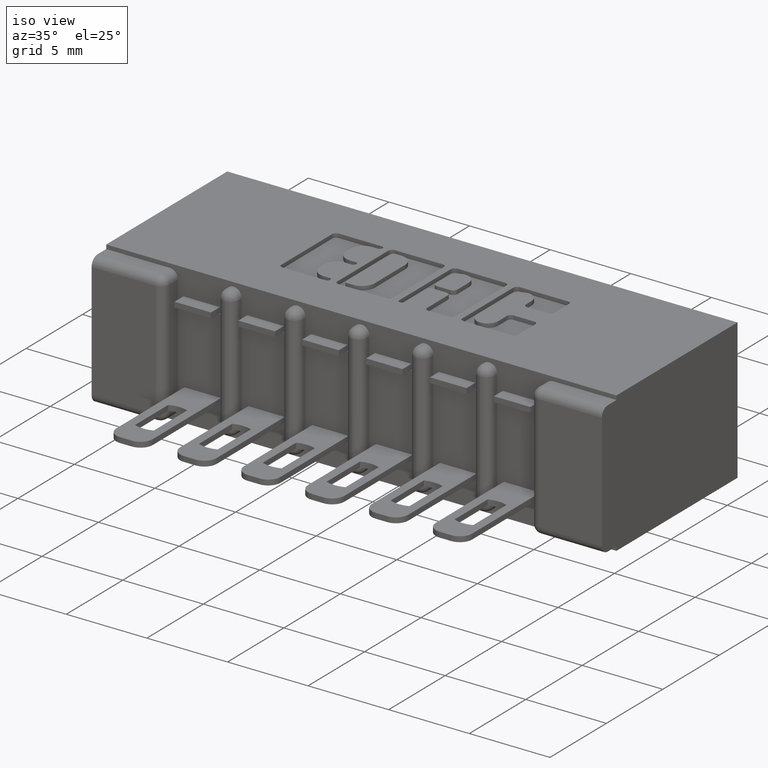
[diagram: clean part render]
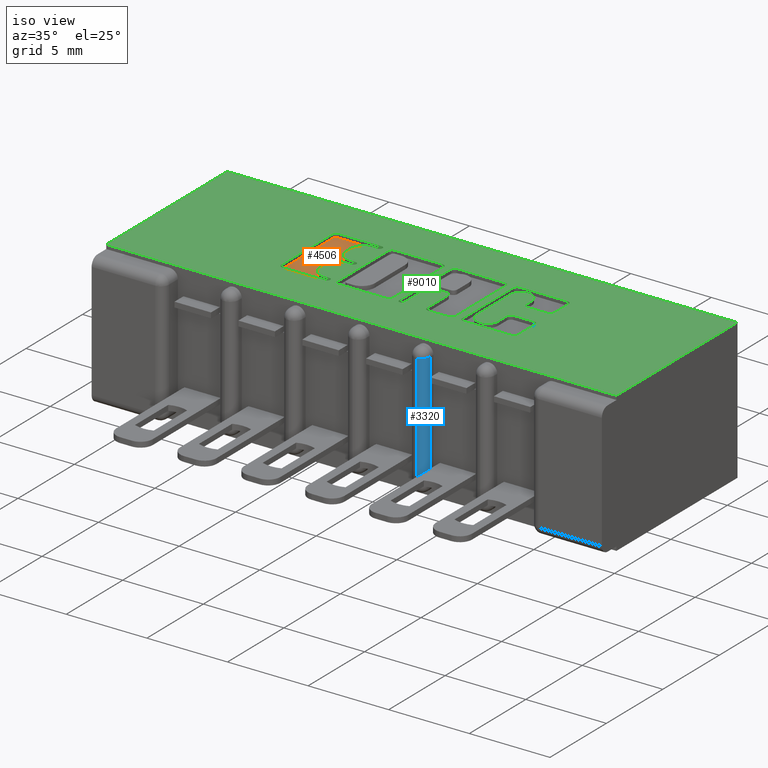
[diagram: same view with three faces highlighted in distinct colors, each labeled with its STEP entity id]
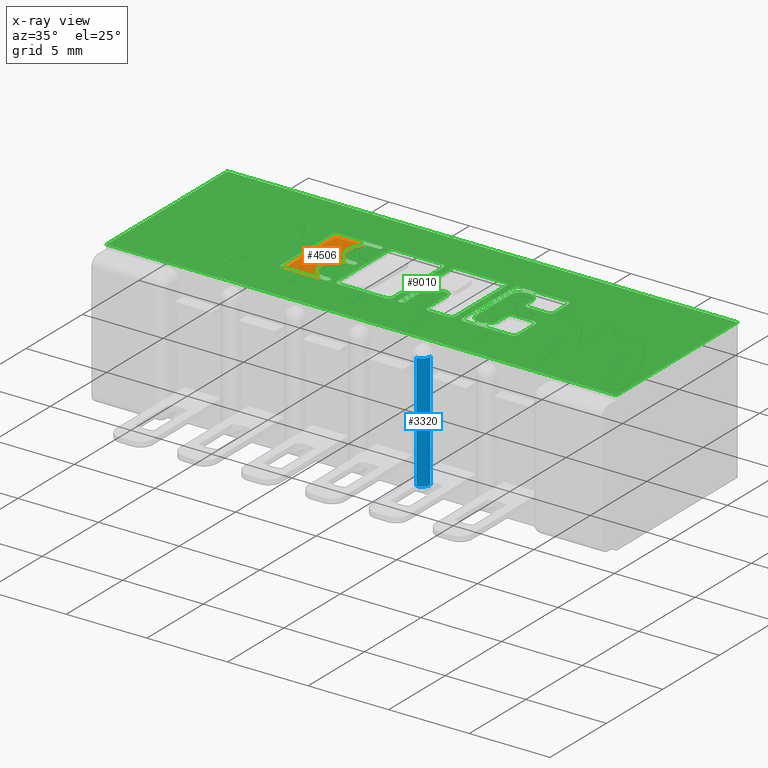
[diagram: x-ray of the same camera — body ghosted, the three highlighted faces saturated]
A machine part, iso view with three faces highlighted in distinct colors.
The next image is the same camera in x-ray (body ghosted, the three faces saturated) — at least one of them is partly hidden behind the body in this view.
Their STEP definitions:

[orange] entity #4506 — the highlighted planar face has unit normal (0, 0, 1).
#82 = CARTESIAN_POINT ( 'NONE',  ( 0.7406370600051098700, 0.1775852362473085400, -0.01000000000000000000 ) ) ;
#140 = VECTOR ( 'NONE', #4859, 39.37007874015748100 ) ;
#141 = AXIS2_PLACEMENT_3D ( 'NONE', #1447, #8492, #6888 ) ;
#143 = CIRCLE ( 'NONE', #8377, 0.03141014465217454400 ) ;
#158 = DIRECTION ( 'NONE',  ( -0.0000000000000000000, 0.0000000000000000000, 1.000000000000000000 ) ) ;
#172 = CARTESIAN_POINT ( 'NONE',  ( 0.7092269153529280300, 0.2089953808994903200, -0.01000000000000000000 ) ) ;
#202 = DIRECTION ( 'NONE',  ( 1.000000000000000000, 0.0000000000000000000, 0.0000000000000000000 ) ) ;
#273 = LINE ( 'NONE', #2549, #8313 ) ;
#316 = EDGE_CURVE ( 'NONE', #9116, #7431, #3802, .T. ) ;
#317 = CIRCLE ( 'NONE', #141, 0.009815670203805798900 ) ;
#346 = EDGE_CURVE ( 'NONE', #6788, #4488, #273, .T. ) ;
#397 = AXIS2_PLACEMENT_3D ( 'NONE', #1315, #2874, #635 ) ;
#433 = VECTOR ( 'NONE', #4834, 39.37007874015748100 ) ;
#489 = EDGE_CURVE ( 'NONE', #1811, #9910, #4289, .T. ) ;
#562 = DIRECTION ( 'NONE',  ( -1.000000000000000000, -1.189163988687022500E-013, 0.0000000000000000000 ) ) ;
#575 = AXIS2_PLACEMENT_3D ( 'NONE', #7762, #6222, #3230 ) ;
#635 = DIRECTION ( 'NONE',  ( 1.000000000000000000, 0.0000000000000000000, 0.0000000000000000000 ) ) ;
#642 = EDGE_CURVE ( 'NONE', #5603, #7182, #4526, .T. ) ;
#685 = LINE ( 'NONE', #6472, #433 ) ;
#708 = AXIS2_PLACEMENT_3D ( 'NONE', #6861, #7624, #3822 ) ;
#710 = VERTEX_POINT ( 'NONE', #1700 ) ;
#858 = VERTEX_POINT ( 'NONE', #7352 ) ;
#899 = VECTOR ( 'NONE', #6488, 39.37007874015748100 ) ;
#956 = CARTESIAN_POINT ( 'NONE',  ( 0.7092269153529097100, 0.0000000000000000000, -0.01000000000000000000 ) ) ;
#967 = CARTESIAN_POINT ( 'NONE',  ( 0.7541336065353515500, 0.3532857328953861700, -0.01000000000000000000 ) ) ;
#985 = ORIENTED_EDGE ( 'NONE', *, *, #3922, .T. ) ;
#1099 = CARTESIAN_POINT ( 'NONE',  ( 0.7092269153529097100, 0.3002811137948582800, -0.01000000000000000000 ) ) ;
#1112 = DIRECTION ( 'NONE',  ( -0.0000000000000000000, 0.0000000000000000000, 1.000000000000000000 ) ) ;
#1173 = CIRCLE ( 'NONE', #2620, 0.006870969142663458500 ) ;
#1206 = VECTOR ( 'NONE', #2721, 39.37007874015748100 ) ;
#1258 = AXIS2_PLACEMENT_3D ( 'NONE', #8957, #1112, #6634 ) ;
#1315 = CARTESIAN_POINT ( 'NONE',  ( 0.7406370600051098700, 0.2089953808994903200, -0.01000000000000000000 ) ) ;
#1447 = CARTESIAN_POINT ( 'NONE',  ( 0.6498421106199224800, 0.1736589681657899100, -0.01000000000000000000 ) ) ;
#1451 = CARTESIAN_POINT ( 'NONE',  ( 0.0000000000000000000, 0.2551290308573567800, -0.01000000000000000000 ) ) ;
#1603 = AXIS2_PLACEMENT_3D ( 'NONE', #967, #4891, #202 ) ;
#1700 = CARTESIAN_POINT ( 'NONE',  ( 0.7610045756779737500, 0.2620000000000202700, -0.01000000000000000000 ) ) ;
#1769 = LINE ( 'NONE', #8553, #8476 ) ;
#1788 = CARTESIAN_POINT ( 'NONE',  ( 0.6400264404161156700, 0.0000000000000000000, -0.01000000000000000000 ) ) ;
#1811 = VERTEX_POINT ( 'NONE', #7774 ) ;
#1977 = DIRECTION ( 'NONE',  ( -0.0000000000000000000, 0.0000000000000000000, 1.000000000000000000 ) ) ;
#1997 = LINE ( 'NONE', #3619, #8569 ) ;
#2039 = CIRCLE ( 'NONE', #2547, 0.009815670203822599700 ) ;
#2084 = CARTESIAN_POINT ( 'NONE',  ( 0.7406370600050843400, 0.3002811137948582800, -0.01000000000000000000 ) ) ;
#2085 = DIRECTION ( 'NONE',  ( -0.0000000000000000000, 0.0000000000000000000, 1.000000000000000000 ) ) ;
#2101 = CARTESIAN_POINT ( 'NONE',  ( 0.7541336064154146000, 0.1638432979619856000, -0.01000000000000000000 ) ) ;
#2131 = CARTESIAN_POINT ( 'NONE',  ( 0.7092269153529097100, 0.3150046191005197400, -0.01000000000000000000 ) ) ;
#2171 = ORIENTED_EDGE ( 'NONE', *, *, #7092, .T. ) ;
#2178 = CARTESIAN_POINT ( 'NONE',  ( 0.7541336065353515500, 0.3601567020380326800, -0.01000000000000000000 ) ) ;
#2195 = ORIENTED_EDGE ( 'NONE', *, *, #3549, .T. ) ;
#2547 = AXIS2_PLACEMENT_3D ( 'NONE', #5133, #2651, #9760 ) ;
#2549 = CARTESIAN_POINT ( 'NONE',  ( 0.7092269153529280300, 0.0000000000000000000, -0.01000000000000000000 ) ) ;
#2594 = AXIS2_PLACEMENT_3D ( 'NONE', #9159, #2085, #9929 ) ;
#2620 = AXIS2_PLACEMENT_3D ( 'NONE', #7592, #4542, #9120 ) ;
#2651 = DIRECTION ( 'NONE',  ( -0.0000000000000000000, 0.0000000000000000000, 1.000000000000000000 ) ) ;
#2721 = DIRECTION ( 'NONE',  ( -1.000000000000000000, 0.0000000000000000000, 0.0000000000000000000 ) ) ;
#2737 = VERTEX_POINT ( 'NONE', #7595 ) ;
#2758 = ORIENTED_EDGE ( 'NONE', *, *, #2830, .T. ) ;
#2830 = EDGE_CURVE ( 'NONE', #10110, #5603, #4478, .T. ) ;
#2874 = DIRECTION ( 'NONE',  ( -0.0000000000000000000, 0.0000000000000000000, 1.000000000000000000 ) ) ;
#2923 = EDGE_CURVE ( 'NONE', #858, #4488, #7775, .T. ) ;
#2961 = DIRECTION ( 'NONE',  ( 1.000000000000000000, 0.0000000000000000000, 0.0000000000000000000 ) ) ;
#3051 = ORIENTED_EDGE ( 'NONE', *, *, #7728, .T. ) ;
#3126 = LINE ( 'NONE', #8395, #3960 ) ;
#3230 = DIRECTION ( 'NONE',  ( 1.000000000000000000, 0.0000000000000000000, 0.0000000000000000000 ) ) ;
#3284 = DIRECTION ( 'NONE',  ( 1.000000000000000000, 0.0000000000000000000, 0.0000000000000000000 ) ) ;
#3354 = CARTESIAN_POINT ( 'NONE',  ( 0.7541336065353102500, 0.2688709691426837700, -0.01000000000000000000 ) ) ;
#3369 = CARTESIAN_POINT ( 'NONE',  ( 0.7092269153529280300, 0.2237188862052004700, -0.01000000000000000000 ) ) ;
#3404 = DIRECTION ( 'NONE',  ( -0.0000000000000000000, 0.0000000000000000000, 1.000000000000000000 ) ) ;
#3466 = CIRCLE ( 'NONE', #397, 0.03141014465218178200 ) ;
#3469 = CIRCLE ( 'NONE', #1258, 0.006870969142662229500 ) ;
#3549 = EDGE_CURVE ( 'NONE', #5065, #6986, #8612, .T. ) ;
#3619 = CARTESIAN_POINT ( 'NONE',  ( -2.111779678676719100E-014, 0.1775852362472204700, -0.01000000000000000000 ) ) ;
#3628 = CARTESIAN_POINT ( 'NONE',  ( 0.0000000000000000000, 0.2688709691426837700, -0.01000000000000000000 ) ) ;
#3716 = FACE_OUTER_BOUND ( 'NONE', #4355, .T. ) ;
#3802 = LINE ( 'NONE', #1788, #899 ) ;
#3811 = CARTESIAN_POINT ( 'NONE',  ( 0.7541336065353516600, 0.3464147637527356100, -0.01000000000000000000 ) ) ;
#3822 = DIRECTION ( 'NONE',  ( 1.000000000000000000, 0.0000000000000000000, 0.0000000000000000000 ) ) ;
#3899 = VERTEX_POINT ( 'NONE', #82 ) ;
#3922 = EDGE_CURVE ( 'NONE', #5560, #710, #5196, .T. ) ;
#3960 = VECTOR ( 'NONE', #9051, 39.37007874015748100 ) ;
#4177 = AXIS2_PLACEMENT_3D ( 'NONE', #6625, #1977, #7427 ) ;
#4258 = EDGE_CURVE ( 'NONE', #1811, #10110, #1769, .T. ) ;
#4289 = CIRCLE ( 'NONE', #575, 0.03141014465221592800 ) ;
#4355 = EDGE_LOOP ( 'NONE', ( #6549, #7444, #2758, #5207, #7062, #6085, #9459, #6942, #9572, #4614, #6882, #3051, #5755, #7556, #8373, #9417, #985, #2171, #2195, #7314, #5650 ) ) ;
#4452 = EDGE_CURVE ( 'NONE', #7182, #9599, #685, .T. ) ;
#4478 = CIRCLE ( 'NONE', #2594, 0.006870969142648570200 ) ;
#4488 = VERTEX_POINT ( 'NONE', #3369 ) ;
#4506 = ADVANCED_FACE ( 'NONE', ( #3716 ), #8068, .T. ) ;
#4526 = CIRCLE ( 'NONE', #1603, 0.006870969142648570200 ) ;
#4542 = DIRECTION ( 'NONE',  ( -0.0000000000000000000, 0.0000000000000000000, 1.000000000000000000 ) ) ;
#4566 = EDGE_CURVE ( 'NONE', #10036, #2737, #3469, .T. ) ;
#4614 = ORIENTED_EDGE ( 'NONE', *, *, #9340, .T. ) ;
#4617 = DIRECTION ( 'NONE',  ( 1.000000000000000000, 0.0000000000000000000, 0.0000000000000000000 ) ) ;
#4753 = CARTESIAN_POINT ( 'NONE',  ( 0.6498421106199383500, 0.3601567020380326800, -0.01000000000000000000 ) ) ;
#4834 = DIRECTION ( 'NONE',  ( -1.000000000000000000, 0.0000000000000000000, 0.0000000000000000000 ) ) ;
#4859 = DIRECTION ( 'NONE',  ( 0.0000000000000000000, 1.000000000000000000, -0.0000000000000000000 ) ) ;
#4891 = DIRECTION ( 'NONE',  ( -0.0000000000000000000, 0.0000000000000000000, 1.000000000000000000 ) ) ;
#4999 = CARTESIAN_POINT ( 'NONE',  ( 0.0000000000000000000, 0.0000000000000000000, -0.01000000000000000000 ) ) ;
#5065 = VERTEX_POINT ( 'NONE', #3354 ) ;
#5133 = CARTESIAN_POINT ( 'NONE',  ( 0.6498421106199383500, 0.3503410318342100000, -0.01000000000000000000 ) ) ;
#5162 = EDGE_CURVE ( 'NONE', #9112, #9910, #8305, .T. ) ;
#5196 = CIRCLE ( 'NONE', #8989, 0.006870969142663458500 ) ;
#5207 = ORIENTED_EDGE ( 'NONE', *, *, #642, .T. ) ;
#5243 = EDGE_CURVE ( 'NONE', #9599, #9116, #2039, .T. ) ;
#5383 = EDGE_CURVE ( 'NONE', #8274, #7638, #3126, .T. ) ;
#5385 = DIRECTION ( 'NONE',  ( 1.000000000000000000, 0.0000000000000000000, 0.0000000000000000000 ) ) ;
#5452 = EDGE_CURVE ( 'NONE', #7431, #8274, #317, .T. ) ;
#5560 = VERTEX_POINT ( 'NONE', #10060 ) ;
#5603 = VERTEX_POINT ( 'NONE', #7838 ) ;
#5650 = ORIENTED_EDGE ( 'NONE', *, *, #5162, .T. ) ;
#5755 = ORIENTED_EDGE ( 'NONE', *, *, #5995, .F. ) ;
#5938 = CARTESIAN_POINT ( 'NONE',  ( 0.7406370600050843400, 0.2688709691426837700, -0.01000000000000000000 ) ) ;
#5995 = EDGE_CURVE ( 'NONE', #6788, #3899, #3466, .T. ) ;
#6085 = ORIENTED_EDGE ( 'NONE', *, *, #5243, .T. ) ;
#6126 = CARTESIAN_POINT ( 'NONE',  ( 0.7610045756779980600, 0.1707142671046479000, -0.01000000000000000000 ) ) ;
#6222 = DIRECTION ( 'NONE',  ( -0.0000000000000000000, 0.0000000000000000000, 1.000000000000000000 ) ) ;
#6309 = AXIS2_PLACEMENT_3D ( 'NONE', #4999, #3404, #7356 ) ;
#6472 = CARTESIAN_POINT ( 'NONE',  ( 0.0000000000000000000, 0.3601567020380326800, -0.01000000000000000000 ) ) ;
#6488 = DIRECTION ( 'NONE',  ( 0.0000000000000000000, -1.000000000000000000, 0.0000000000000000000 ) ) ;
#6549 = ORIENTED_EDGE ( 'NONE', *, *, #489, .F. ) ;
#6558 = CARTESIAN_POINT ( 'NONE',  ( 0.6400264404161156700, 0.3503410318342100000, -0.01000000000000000000 ) ) ;
#6625 = CARTESIAN_POINT ( 'NONE',  ( 0.7541336065353357900, 0.1707142671046479000, -0.01000000000000000000 ) ) ;
#6634 = DIRECTION ( 'NONE',  ( 1.000000000000000000, 0.0000000000000000000, 0.0000000000000000000 ) ) ;
#6788 = VERTEX_POINT ( 'NONE', #172 ) ;
#6861 = CARTESIAN_POINT ( 'NONE',  ( 0.7406370600050843400, 0.2237188862052004700, -0.01000000000000000000 ) ) ;
#6882 = ORIENTED_EDGE ( 'NONE', *, *, #4566, .T. ) ;
#6888 = DIRECTION ( 'NONE',  ( 1.000000000000000000, 0.0000000000000000000, 0.0000000000000000000 ) ) ;
#6942 = ORIENTED_EDGE ( 'NONE', *, *, #5452, .T. ) ;
#6947 = CIRCLE ( 'NONE', #4177, 0.006870969142662229500 ) ;
#6986 = VERTEX_POINT ( 'NONE', #5938 ) ;
#7062 = ORIENTED_EDGE ( 'NONE', *, *, #4452, .T. ) ;
#7092 = EDGE_CURVE ( 'NONE', #710, #5065, #1173, .T. ) ;
#7123 = CARTESIAN_POINT ( 'NONE',  ( 0.7541336065353102500, 0.2620000000000202700, -0.01000000000000000000 ) ) ;
#7182 = VERTEX_POINT ( 'NONE', #2178 ) ;
#7314 = ORIENTED_EDGE ( 'NONE', *, *, #9341, .F. ) ;
#7352 = CARTESIAN_POINT ( 'NONE',  ( 0.7406370600050843400, 0.2551290308573567800, -0.01000000000000000000 ) ) ;
#7356 = DIRECTION ( 'NONE',  ( 1.000000000000000000, 0.0000000000000000000, 0.0000000000000000000 ) ) ;
#7393 = CARTESIAN_POINT ( 'NONE',  ( 0.6498421106199189200, 0.1638432979619849400, -0.01000000000000000000 ) ) ;
#7427 = DIRECTION ( 'NONE',  ( 1.000000000000000000, 0.0000000000000000000, 0.0000000000000000000 ) ) ;
#7431 = VERTEX_POINT ( 'NONE', #8699 ) ;
#7444 = ORIENTED_EDGE ( 'NONE', *, *, #4258, .T. ) ;
#7556 = ORIENTED_EDGE ( 'NONE', *, *, #346, .T. ) ;
#7592 = CARTESIAN_POINT ( 'NONE',  ( 0.7541336065353102500, 0.2620000000000202700, -0.01000000000000000000 ) ) ;
#7595 = CARTESIAN_POINT ( 'NONE',  ( 0.7541336064154146000, 0.1775852362473101500, -0.01000000000000000000 ) ) ;
#7624 = DIRECTION ( 'NONE',  ( -0.0000000000000000000, 0.0000000000000000000, 1.000000000000000000 ) ) ;
#7638 = VERTEX_POINT ( 'NONE', #2101 ) ;
#7728 = EDGE_CURVE ( 'NONE', #2737, #3899, #1997, .T. ) ;
#7762 = CARTESIAN_POINT ( 'NONE',  ( 0.7406370600051257500, 0.3150046191005197400, -0.01000000000000000000 ) ) ;
#7774 = CARTESIAN_POINT ( 'NONE',  ( 0.7406370600051257500, 0.3464147637527356100, -0.01000000000000000000 ) ) ;
#7775 = CIRCLE ( 'NONE', #708, 0.03141014465215624000 ) ;
#7838 = CARTESIAN_POINT ( 'NONE',  ( 0.7610045756780000600, 0.3532857328953861700, -0.01000000000000000000 ) ) ;
#8068 = PLANE ( 'NONE',  #6309 ) ;
#8099 = DIRECTION ( 'NONE',  ( 0.0000000000000000000, 1.000000000000000000, -0.0000000000000000000 ) ) ;
#8274 = VERTEX_POINT ( 'NONE', #7393 ) ;
#8305 = LINE ( 'NONE', #956, #140 ) ;
#8313 = VECTOR ( 'NONE', #8099, 39.37007874015748100 ) ;
#8373 = ORIENTED_EDGE ( 'NONE', *, *, #2923, .F. ) ;
#8377 = AXIS2_PLACEMENT_3D ( 'NONE', #2084, #9084, #4617 ) ;
#8395 = CARTESIAN_POINT ( 'NONE',  ( -1.072942192934067400E-015, 0.1638432979619806600, -0.01000000000000000000 ) ) ;
#8476 = VECTOR ( 'NONE', #5385, 39.37007874015748100 ) ;
#8492 = DIRECTION ( 'NONE',  ( -0.0000000000000000000, 0.0000000000000000000, 1.000000000000000000 ) ) ;
#8553 = CARTESIAN_POINT ( 'NONE',  ( 0.0000000000000000000, 0.3464147637527356100, -0.01000000000000000000 ) ) ;
#8569 = VECTOR ( 'NONE', #562, 39.37007874015748100 ) ;
#8612 = LINE ( 'NONE', #3628, #1206 ) ;
#8663 = LINE ( 'NONE', #1451, #8899 ) ;
#8699 = CARTESIAN_POINT ( 'NONE',  ( 0.6400264404161156700, 0.1736589681657899100, -0.01000000000000000000 ) ) ;
#8899 = VECTOR ( 'NONE', #2961, 39.37007874015748100 ) ;
#8957 = CARTESIAN_POINT ( 'NONE',  ( 0.7541336065353357900, 0.1707142671046479000, -0.01000000000000000000 ) ) ;
#8989 = AXIS2_PLACEMENT_3D ( 'NONE', #7123, #158, #3284 ) ;
#9051 = DIRECTION ( 'NONE',  ( 1.000000000000000000, 6.548587621710595000E-015, 0.0000000000000000000 ) ) ;
#9084 = DIRECTION ( 'NONE',  ( -0.0000000000000000000, 0.0000000000000000000, 1.000000000000000000 ) ) ;
#9112 = VERTEX_POINT ( 'NONE', #1099 ) ;
#9116 = VERTEX_POINT ( 'NONE', #6558 ) ;
#9120 = DIRECTION ( 'NONE',  ( 1.000000000000000000, 0.0000000000000000000, 0.0000000000000000000 ) ) ;
#9159 = CARTESIAN_POINT ( 'NONE',  ( 0.7541336065353515500, 0.3532857328953861700, -0.01000000000000000000 ) ) ;
#9340 = EDGE_CURVE ( 'NONE', #7638, #10036, #6947, .T. ) ;
#9341 = EDGE_CURVE ( 'NONE', #9112, #6986, #143, .T. ) ;
#9415 = EDGE_CURVE ( 'NONE', #858, #5560, #8663, .T. ) ;
#9417 = ORIENTED_EDGE ( 'NONE', *, *, #9415, .T. ) ;
#9459 = ORIENTED_EDGE ( 'NONE', *, *, #316, .T. ) ;
#9572 = ORIENTED_EDGE ( 'NONE', *, *, #5383, .T. ) ;
#9599 = VERTEX_POINT ( 'NONE', #4753 ) ;
#9760 = DIRECTION ( 'NONE',  ( 1.000000000000000000, 0.0000000000000000000, 0.0000000000000000000 ) ) ;
#9910 = VERTEX_POINT ( 'NONE', #2131 ) ;
#9929 = DIRECTION ( 'NONE',  ( 1.000000000000000000, 0.0000000000000000000, 0.0000000000000000000 ) ) ;
#10036 = VERTEX_POINT ( 'NONE', #6126 ) ;
#10060 = CARTESIAN_POINT ( 'NONE',  ( 0.7541336064153890700, 0.2551290308573567800, -0.01000000000000000000 ) ) ;
#10110 = VERTEX_POINT ( 'NONE', #3811 ) ;

[blue] entity #3320 — the highlighted cylindrical surface (edge-blend (fillet) strip) has radius 0.508 mm, axis along (0, 0, -1).
#269 = EDGE_CURVE ( 'NONE', #3737, #3583, #6234, .T. ) ;
#332 = LINE ( 'NONE', #7235, #8245 ) ;
#716 = VERTEX_POINT ( 'NONE', #8028 ) ;
#1121 = AXIS2_PLACEMENT_3D ( 'NONE', #2487, #3985, #2849 ) ;
#1477 = CARTESIAN_POINT ( 'NONE',  ( 1.097000000000000400, 0.04000000000000000100, -0.3130000000000007200 ) ) ;
#1855 = CARTESIAN_POINT ( 'NONE',  ( 1.077000000000000200, 0.04000000000000000100, -0.3130000000000007200 ) ) ;
#1999 = CARTESIAN_POINT ( 'NONE',  ( 1.077000000000000600, 0.02000000000000000000, -0.3130000000000006700 ) ) ;
#2036 = DIRECTION ( 'NONE',  ( 1.592914282019978200E-015, -0.0000000000000000000, -1.000000000000000000 ) ) ;
#2487 = CARTESIAN_POINT ( 'NONE',  ( 1.077000000000000200, 0.04000000000000000100, -0.3430000000000001400 ) ) ;
#2515 = ORIENTED_EDGE ( 'NONE', *, *, #6772, .T. ) ;
#2524 = FACE_OUTER_BOUND ( 'NONE', #6667, .T. ) ;
#2849 = DIRECTION ( 'NONE',  ( -1.000000000000000000, 0.0000000000000000000, 0.0000000000000000000 ) ) ;
#3320 = ADVANCED_FACE ( 'NONE', ( #2524 ), #4582, .T. ) ;
#3453 = EDGE_CURVE ( 'NONE', #716, #3737, #332, .T. ) ;
#3583 = VERTEX_POINT ( 'NONE', #1999 ) ;
#3737 = VERTEX_POINT ( 'NONE', #1477 ) ;
#3836 = ORIENTED_EDGE ( 'NONE', *, *, #3453, .F. ) ;
#3985 = DIRECTION ( 'NONE',  ( 1.592914282019978000E-015, 0.0000000000000000000, -1.000000000000000000 ) ) ;
#4190 = CARTESIAN_POINT ( 'NONE',  ( 1.076999999999999700, 0.02000000000000000000, -0.02999999999999927000 ) ) ;
#4582 = CYLINDRICAL_SURFACE ( 'NONE', #1121, 0.02000000000000005900 ) ;
#4826 = DIRECTION ( 'NONE',  ( -1.000000000000000000, 0.0000000000000000000, -1.707404996040159400E-015 ) ) ;
#5262 = LINE ( 'NONE', #4190, #9393 ) ;
#5687 = VERTEX_POINT ( 'NONE', #8076 ) ;
#6234 = CIRCLE ( 'NONE', #6363, 0.02000000000000005900 ) ;
#6359 = CARTESIAN_POINT ( 'NONE',  ( 1.076999999999998800, 0.04000000000000000100, -0.02999999999999930500 ) ) ;
#6363 = AXIS2_PLACEMENT_3D ( 'NONE', #1855, #7312, #8085 ) ;
#6516 = AXIS2_PLACEMENT_3D ( 'NONE', #6359, #7042, #4826 ) ;
#6667 = EDGE_LOOP ( 'NONE', ( #7871, #3836, #2515, #8477 ) ) ;
#6772 = EDGE_CURVE ( 'NONE', #716, #5687, #7738, .T. ) ;
#7042 = DIRECTION ( 'NONE',  ( 1.707404996040159200E-015, 6.996556369206972900E-029, -1.000000000000000000 ) ) ;
#7235 = CARTESIAN_POINT ( 'NONE',  ( 1.097000000000000400, 0.04000000000000000100, -0.3130000000000007200 ) ) ;
#7312 = DIRECTION ( 'NONE',  ( 0.0000000000000000000, -0.0000000000000000000, -1.000000000000000000 ) ) ;
#7738 = CIRCLE ( 'NONE', #6516, 0.02000000000000005900 ) ;
#7871 = ORIENTED_EDGE ( 'NONE', *, *, #269, .F. ) ;
#7987 = DIRECTION ( 'NONE',  ( -1.592914282019978200E-015, 0.0000000000000000000, 1.000000000000000000 ) ) ;
#8028 = CARTESIAN_POINT ( 'NONE',  ( 1.096999999999999800, 0.04000000000000000100, -0.02999999999999927000 ) ) ;
#8076 = CARTESIAN_POINT ( 'NONE',  ( 1.077000000000000000, 0.02000000000000000000, -0.02999999999999923200 ) ) ;
#8085 = DIRECTION ( 'NONE',  ( -1.000000000000000000, 0.0000000000000000000, 0.0000000000000000000 ) ) ;
#8245 = VECTOR ( 'NONE', #2036, 39.37007874015748100 ) ;
#8477 = ORIENTED_EDGE ( 'NONE', *, *, #8708, .F. ) ;
#8708 = EDGE_CURVE ( 'NONE', #3583, #5687, #5262, .T. ) ;
#9393 = VECTOR ( 'NONE', #7987, 39.37007874015748100 ) ;

[green] entity #9010 — the highlighted planar face has unit normal (0, 0, -1).
#11 = VECTOR ( 'NONE', #9185, 39.37007874015748100 ) ;
#18 = DIRECTION ( 'NONE',  ( -1.000000000000000000, 0.0000000000000000000, 0.0000000000000000000 ) ) ;
#65 = CIRCLE ( 'NONE', #5012, 0.009815670203796511200 ) ;
#76 = EDGE_CURVE ( 'NONE', #3480, #5365, #8807, .T. ) ;
#103 = ORIENTED_EDGE ( 'NONE', *, *, #5892, .F. ) ;
#109 = ORIENTED_EDGE ( 'NONE', *, *, #4132, .T. ) ;
#120 = VERTEX_POINT ( 'NONE', #5355 ) ;
#142 = ORIENTED_EDGE ( 'NONE', *, *, #864, .T. ) ;
#146 = EDGE_CURVE ( 'NONE', #2479, #5459, #5156, .T. ) ;
#147 = VERTEX_POINT ( 'NONE', #1529 ) ;
#149 = EDGE_CURVE ( 'NONE', #8097, #7681, #8073, .T. ) ;
#150 = LINE ( 'NONE', #1141, #8916 ) ;
#174 = DIRECTION ( 'NONE',  ( 0.0000000000000000000, -1.000000000000000000, 0.0000000000000000000 ) ) ;
#198 = ORIENTED_EDGE ( 'NONE', *, *, #6726, .T. ) ;
#210 = ORIENTED_EDGE ( 'NONE', *, *, #1016, .F. ) ;
#254 = CARTESIAN_POINT ( 'NONE',  ( 1.207862961706167400, 0.2909562271012335900, 0.0000000000000000000 ) ) ;
#305 = CARTESIAN_POINT ( 'NONE',  ( 1.207862961706153400, 0.2335345564089703600, 0.0000000000000000000 ) ) ;
#325 = EDGE_CURVE ( 'NONE', #1786, #2261, #4043, .T. ) ;
#350 = DIRECTION ( 'NONE',  ( 1.000000000000000000, 0.0000000000000000000, 0.0000000000000000000 ) ) ;
#373 = ORIENTED_EDGE ( 'NONE', *, *, #893, .F. ) ;
#425 = ORIENTED_EDGE ( 'NONE', *, *, #8093, .F. ) ;
#452 = CIRCLE ( 'NONE', #1813, 0.009815670203840084000 ) ;
#475 = CARTESIAN_POINT ( 'NONE',  ( 0.7541336065353357900, 0.1707142671046479000, 0.0000000000000000000 ) ) ;
#497 = CARTESIAN_POINT ( 'NONE',  ( 0.9860288151001880300, 0.2453133606535527200, 0.0000000000000000000 ) ) ;
#504 = ORIENTED_EDGE ( 'NONE', *, *, #6339, .F. ) ;
#520 = CARTESIAN_POINT ( 'NONE',  ( 1.148478156973166100, 0.0000000000000000000, 0.0000000000000000000 ) ) ;
#536 = CARTESIAN_POINT ( 'NONE',  ( 1.207862961706134500, 0.1736589681657899100, 0.0000000000000000000 ) ) ;
#538 = ORIENTED_EDGE ( 'NONE', *, *, #3200, .F. ) ;
#541 = EDGE_CURVE ( 'NONE', #147, #6408, #5859, .T. ) ;
#549 = VERTEX_POINT ( 'NONE', #762 ) ;
#566 = ORIENTED_EDGE ( 'NONE', *, *, #8709, .F. ) ;
#584 = DIRECTION ( 'NONE',  ( 1.000000000000000000, 0.0000000000000000000, 0.0000000000000000000 ) ) ;
#631 = CIRCLE ( 'NONE', #8732, 0.006870969142657995000 ) ;
#638 = DIRECTION ( 'NONE',  ( -0.0000000000000000000, 0.0000000000000000000, 1.000000000000000000 ) ) ;
#644 = CARTESIAN_POINT ( 'NONE',  ( 0.7406370600050843400, 0.2237188862052004700, 0.0000000000000000000 ) ) ;
#648 = CARTESIAN_POINT ( 'NONE',  ( -0.0000000000000000000, 0.3601567020380065400, 0.0000000000000000000 ) ) ;
#652 = CARTESIAN_POINT ( 'NONE',  ( 0.7867707099630104600, 0.3503410318342100000, 0.0000000000000000000 ) ) ;
#668 = VECTOR ( 'NONE', #6063, 39.37007874015748100 ) ;
#670 = CARTESIAN_POINT ( 'NONE',  ( 0.7541336065353515500, 0.3532857328953861700, 0.0000000000000000000 ) ) ;
#702 = CARTESIAN_POINT ( 'NONE',  ( 1.148478156973166100, 0.3201578454992598000, 0.0000000000000000000 ) ) ;
#735 = AXIS2_PLACEMENT_3D ( 'NONE', #960, #5571, #8648 ) ;
#746 = EDGE_CURVE ( 'NONE', #5211, #8097, #1264, .T. ) ;
#762 = CARTESIAN_POINT ( 'NONE',  ( 0.9433306497136472200, 0.2453133606535455300, 0.0000000000000000000 ) ) ;
#763 = VECTOR ( 'NONE', #4347, 39.37007874015748100 ) ;
#800 = EDGE_CURVE ( 'NONE', #8035, #3630, #2837, .T. ) ;
#844 = CARTESIAN_POINT ( 'NONE',  ( 1.065044960240807000, 0.3503410318342009600, 0.0000000000000000000 ) ) ;
#845 = AXIS2_PLACEMENT_3D ( 'NONE', #2225, #3004, #3805 ) ;
#864 = EDGE_CURVE ( 'NONE', #7899, #4367, #3194, .T. ) ;
#866 = CARTESIAN_POINT ( 'NONE',  ( 0.9958444853039849500, 0.1736589681657878000, 0.0000000000000000000 ) ) ;
#868 = VERTEX_POINT ( 'NONE', #2661 ) ;
#893 = EDGE_CURVE ( 'NONE', #1393, #1665, #1133, .T. ) ;
#905 = CARTESIAN_POINT ( 'NONE',  ( 0.9958444853039849500, 0.0000000000000000000, 0.0000000000000000000 ) ) ;
#907 = ORIENTED_EDGE ( 'NONE', *, *, #3286, .F. ) ;
#934 = EDGE_CURVE ( 'NONE', #7173, #5931, #150, .T. ) ;
#937 = CIRCLE ( 'NONE', #2825, 0.009815670203787086500 ) ;
#960 = CARTESIAN_POINT ( 'NONE',  ( 0.7406370600050843400, 0.3002811137948582800, 0.0000000000000000000 ) ) ;
#969 = AXIS2_PLACEMENT_3D ( 'NONE', #5979, #3702, #2836 ) ;
#973 = CARTESIAN_POINT ( 'NONE',  ( 1.217678631909940400, 0.1736589681657829100, 0.0000000000000000000 ) ) ;
#980 = DIRECTION ( 'NONE',  ( 1.000000000000000000, 0.0000000000000000000, 0.0000000000000000000 ) ) ;
#1006 = LINE ( 'NONE', #4222, #7079 ) ;
#1008 = CARTESIAN_POINT ( 'NONE',  ( 1.095964321382818700, 0.2038421540424529300, 0.0000000000000000000 ) ) ;
#1011 = CARTESIAN_POINT ( 'NONE',  ( 1.065044960240807000, 0.0000000000000000000, 0.0000000000000000000 ) ) ;
#1016 = EDGE_CURVE ( 'NONE', #2055, #7081, #2708, .T. ) ;
#1029 = CARTESIAN_POINT ( 'NONE',  ( 0.0000000000000000000, 0.3601567020380510000, 0.0000000000000000000 ) ) ;
#1035 = LINE ( 'NONE', #6449, #5410 ) ;
#1043 = VECTOR ( 'NONE', #6040, 39.37007874015748100 ) ;
#1054 = DIRECTION ( 'NONE',  ( 1.000000000000000000, 0.0000000000000000000, 0.0000000000000000000 ) ) ;
#1059 = CARTESIAN_POINT ( 'NONE',  ( 0.9025956183678282000, 0.3503410318342098900, 0.0000000000000000000 ) ) ;
#1064 = AXIS2_PLACEMENT_3D ( 'NONE', #3062, #9279, #2406 ) ;
#1067 = LINE ( 'NONE', #7620, #7756 ) ;
#1074 = VERTEX_POINT ( 'NONE', #6174 ) ;
#1081 = ORIENTED_EDGE ( 'NONE', *, *, #4378, .F. ) ;
#1088 = VECTOR ( 'NONE', #8269, 39.37007874015748100 ) ;
#1091 = CARTESIAN_POINT ( 'NONE',  ( 1.207862961706134500, 0.1638432979619831300, 0.0000000000000000000 ) ) ;
#1097 = CARTESIAN_POINT ( 'NONE',  ( 1.055229290037011900, 0.3503410318342102800, 0.0000000000000000000 ) ) ;
#1103 = ORIENTED_EDGE ( 'NONE', *, *, #146, .F. ) ;
#1111 = CARTESIAN_POINT ( 'NONE',  ( 0.9124112885716693100, 0.0000000000000000000, 0.0000000000000000000 ) ) ;
#1129 = CARTESIAN_POINT ( 'NONE',  ( 0.6498421106199383500, 0.3601567020380326800, 0.0000000000000000000 ) ) ;
#1133 = CIRCLE ( 'NONE', #4198, 0.009815670203822599700 ) ;
#1141 = CARTESIAN_POINT ( 'NONE',  ( 0.2979999999999999900, 0.0000000000000000000, 0.0000000000000000000 ) ) ;
#1161 = DIRECTION ( 'NONE',  ( -0.0000000000000000000, 0.0000000000000000000, 1.000000000000000000 ) ) ;
#1174 = DIRECTION ( 'NONE',  ( -0.0000000000000000000, 0.0000000000000000000, 1.000000000000000000 ) ) ;
#1193 = AXIS2_PLACEMENT_3D ( 'NONE', #5519, #6375, #980 ) ;
#1195 = LINE ( 'NONE', #1111, #1521 ) ;
#1225 = LINE ( 'NONE', #3638, #1088 ) ;
#1264 = LINE ( 'NONE', #6468, #9278 ) ;
#1273 = CARTESIAN_POINT ( 'NONE',  ( 0.7092269153529097100, 0.0000000000000000000, 0.0000000000000000000 ) ) ;
#1300 = CARTESIAN_POINT ( 'NONE',  ( 0.7541336065353516600, 0.3464147637527356100, 0.0000000000000000000 ) ) ;
#1301 = DIRECTION ( 'NONE',  ( -0.0000000000000000000, 1.000000000000000000, -0.0000000000000000000 ) ) ;
#1307 = AXIS2_PLACEMENT_3D ( 'NONE', #536, #7617, #6756 ) ;
#1310 = CARTESIAN_POINT ( 'NONE',  ( 0.9394043816321276900, 0.3601567020380065400, 0.0000000000000000000 ) ) ;
#1343 = CARTESIAN_POINT ( 'NONE',  ( 0.7406370600050843400, 0.2551290308573567800, 0.0000000000000000000 ) ) ;
#1363 = AXIS2_PLACEMENT_3D ( 'NONE', #6127, #7771, #3109 ) ;
#1378 = CARTESIAN_POINT ( 'NONE',  ( 1.207862961706156900, 0.2433502266127574900, 0.0000000000000000000 ) ) ;
#1393 = VERTEX_POINT ( 'NONE', #1129 ) ;
#1396 = ORIENTED_EDGE ( 'NONE', *, *, #10053, .F. ) ;
#1407 = DIRECTION ( 'NONE',  ( -0.0000000000000000000, 0.0000000000000000000, 1.000000000000000000 ) ) ;
#1432 = ORIENTED_EDGE ( 'NONE', *, *, #5551, .F. ) ;
#1435 = CARTESIAN_POINT ( 'NONE',  ( 0.9295887114283312200, 0.3503410318342100000, 0.0000000000000000000 ) ) ;
#1461 = EDGE_CURVE ( 'NONE', #7677, #868, #2944, .T. ) ;
#1467 = EDGE_LOOP ( 'NONE', ( #6384, #7266, #8017, #9867 ) ) ;
#1482 = DIRECTION ( 'NONE',  ( 1.000000000000000000, 0.0000000000000000000, 0.0000000000000000000 ) ) ;
#1487 = CARTESIAN_POINT ( 'NONE',  ( 0.7406370600051257500, 0.3150046191005197400, 0.0000000000000000000 ) ) ;
#1493 = EDGE_CURVE ( 'NONE', #4945, #8583, #631, .T. ) ;
#1505 = LINE ( 'NONE', #3918, #1621 ) ;
#1506 = CARTESIAN_POINT ( 'NONE',  ( 0.7867707099630104600, 0.3601567020380510000, 0.0000000000000000000 ) ) ;
#1521 = VECTOR ( 'NONE', #5671, 39.37007874015748100 ) ;
#1524 = EDGE_CURVE ( 'NONE', #6303, #4367, #1006, .T. ) ;
#1529 = CARTESIAN_POINT ( 'NONE',  ( 0.7541336065353102500, 0.2688709691426837700, 0.0000000000000000000 ) ) ;
#1540 = VECTOR ( 'NONE', #8121, 39.37007874015748100 ) ;
#1569 = VERTEX_POINT ( 'NONE', #5829 ) ;
#1576 = ORIENTED_EDGE ( 'NONE', *, *, #1493, .F. ) ;
#1619 = VERTEX_POINT ( 'NONE', #2168 ) ;
#1621 = VECTOR ( 'NONE', #18, 39.37007874015748100 ) ;
#1644 = EDGE_CURVE ( 'NONE', #4751, #1569, #8531, .T. ) ;
#1665 = VERTEX_POINT ( 'NONE', #4507 ) ;
#1674 = CARTESIAN_POINT ( 'NONE',  ( 0.7769550397591695700, 0.3503410318342100000, 0.0000000000000000000 ) ) ;
#1727 = EDGE_CURVE ( 'NONE', #3878, #549, #4260, .T. ) ;
#1731 = AXIS2_PLACEMENT_3D ( 'NONE', #475, #7565, #3699 ) ;
#1762 = VERTEX_POINT ( 'NONE', #3789 ) ;
#1784 = DIRECTION ( 'NONE',  ( -0.0000000000000000000, 0.0000000000000000000, 1.000000000000000000 ) ) ;
#1786 = VERTEX_POINT ( 'NONE', #844 ) ;
#1813 = AXIS2_PLACEMENT_3D ( 'NONE', #2581, #1784, #1054 ) ;
#1829 = DIRECTION ( 'NONE',  ( 1.000000000000000000, 0.0000000000000000000, 0.0000000000000000000 ) ) ;
#1843 = CARTESIAN_POINT ( 'NONE',  ( 1.092038053301299700, 0.3601567020380510000, 0.0000000000000000000 ) ) ;
#1912 = LINE ( 'NONE', #5158, #6414 ) ;
#1922 = EDGE_CURVE ( 'NONE', #2435, #9785, #9740, .T. ) ;
#1931 = VERTEX_POINT ( 'NONE', #6369 ) ;
#1933 = VERTEX_POINT ( 'NONE', #5513 ) ;
#1974 = FACE_OUTER_BOUND ( 'NONE', #1467, .T. ) ;
#2038 = CARTESIAN_POINT ( 'NONE',  ( 0.6498421106199189200, 0.1638432979619849400, 0.0000000000000000000 ) ) ;
#2055 = VERTEX_POINT ( 'NONE', #1843 ) ;
#2079 = CARTESIAN_POINT ( 'NONE',  ( 1.217678631909972400, 0.3007718973050385600, 0.0000000000000000000 ) ) ;
#2090 = VERTEX_POINT ( 'NONE', #254 ) ;
#2099 = CIRCLE ( 'NONE', #5889, 0.009815670203811535700 ) ;
#2116 = CARTESIAN_POINT ( 'NONE',  ( 0.7541336065353515500, 0.3532857328953861700, 0.0000000000000000000 ) ) ;
#2153 = VERTEX_POINT ( 'NONE', #1310 ) ;
#2168 = CARTESIAN_POINT ( 'NONE',  ( 0.7092269153529097100, 0.3002811137948582800, 0.0000000000000000000 ) ) ;
#2202 = VECTOR ( 'NONE', #6480, 39.37007874015748100 ) ;
#2203 = VERTEX_POINT ( 'NONE', #8284 ) ;
#2204 = ORIENTED_EDGE ( 'NONE', *, *, #8310, .F. ) ;
#2222 = CARTESIAN_POINT ( 'NONE',  ( 0.9124112885716693100, 0.1736589681657899100, 0.0000000000000000000 ) ) ;
#2225 = CARTESIAN_POINT ( 'NONE',  ( 0.7406370600051098700, 0.2089953808994903200, 0.0000000000000000000 ) ) ;
#2232 = CARTESIAN_POINT ( 'NONE',  ( 0.7092269153529280300, 0.0000000000000000000, 0.0000000000000000000 ) ) ;
#2254 = AXIS2_PLACEMENT_3D ( 'NONE', #652, #7623, #7654 ) ;
#2261 = VERTEX_POINT ( 'NONE', #10045 ) ;
#2266 = ORIENTED_EDGE ( 'NONE', *, *, #3168, .F. ) ;
#2283 = ORIENTED_EDGE ( 'NONE', *, *, #1922, .T. ) ;
#2296 = EDGE_CURVE ( 'NONE', #3377, #7369, #6068, .T. ) ;
#2349 = CIRCLE ( 'NONE', #5433, 0.03141014465221592800 ) ;
#2406 = DIRECTION ( 'NONE',  ( 1.000000000000000000, 0.0000000000000000000, 0.0000000000000000000 ) ) ;
#2421 = CARTESIAN_POINT ( 'NONE',  ( 0.9025956183678963700, 0.3601567020380510000, 0.0000000000000000000 ) ) ;
#2435 = VERTEX_POINT ( 'NONE', #866 ) ;
#2479 = VERTEX_POINT ( 'NONE', #2421 ) ;
#2492 = CARTESIAN_POINT ( 'NONE',  ( 0.7541336064154146000, 0.1638432979619856000, 0.0000000000000000000 ) ) ;
#2495 = VECTOR ( 'NONE', #9830, 39.37007874015748100 ) ;
#2500 = LINE ( 'NONE', #9394, #9309 ) ;
#2508 = EDGE_CURVE ( 'NONE', #5127, #2055, #5579, .T. ) ;
#2526 = DIRECTION ( 'NONE',  ( 1.000000000000000000, 0.0000000000000000000, 0.0000000000000000000 ) ) ;
#2551 = EDGE_CURVE ( 'NONE', #549, #8583, #2676, .T. ) ;
#2581 = CARTESIAN_POINT ( 'NONE',  ( 1.207862961706132300, 0.3503410318342108900, 0.0000000000000000000 ) ) ;
#2621 = LINE ( 'NONE', #7426, #6630 ) ;
#2623 = ORIENTED_EDGE ( 'NONE', *, *, #2754, .F. ) ;
#2661 = CARTESIAN_POINT ( 'NONE',  ( 0.7867707099629762700, 0.1638432979619831300, 0.0000000000000000000 ) ) ;
#2664 = DIRECTION ( 'NONE',  ( 1.000000000000000000, 0.0000000000000000000, 0.0000000000000000000 ) ) ;
#2666 = CIRCLE ( 'NONE', #9897, 0.009815670203804980100 ) ;
#2676 = LINE ( 'NONE', #8745, #9360 ) ;
#2708 = CIRCLE ( 'NONE', #969, 0.009815670203840902800 ) ;
#2754 = EDGE_CURVE ( 'NONE', #9314, #1393, #1225, .T. ) ;
#2773 = EDGE_CURVE ( 'NONE', #1619, #10077, #4964, .T. ) ;
#2786 = EDGE_CURVE ( 'NONE', #7681, #4971, #2913, .T. ) ;
#2801 = ORIENTED_EDGE ( 'NONE', *, *, #541, .F. ) ;
#2808 = VECTOR ( 'NONE', #10019, 39.37007874015748100 ) ;
#2822 = EDGE_LOOP ( 'NONE', ( #3296, #6640, #6275, #6053, #142, #5954, #9994, #7234, #538, #7155, #504, #5945, #6786, #4508, #4968, #1081, #210, #3281, #7990, #5255 ) ) ;
#2823 = DIRECTION ( 'NONE',  ( 1.000000000000000000, 0.0000000000000000000, 0.0000000000000000000 ) ) ;
#2825 = AXIS2_PLACEMENT_3D ( 'NONE', #305, #8066, #2664 ) ;
#2833 = DIRECTION ( 'NONE',  ( 0.0000000000000000000, 1.000000000000000000, -0.0000000000000000000 ) ) ;
#2836 = DIRECTION ( 'NONE',  ( 1.000000000000000000, 0.0000000000000000000, 0.0000000000000000000 ) ) ;
#2837 = LINE ( 'NONE', #8924, #763 ) ;
#2844 = EDGE_CURVE ( 'NONE', #2090, #9040, #2666, .T. ) ;
#2846 = DIRECTION ( 'NONE',  ( -0.0000000000000000000, 0.0000000000000000000, 1.000000000000000000 ) ) ;
#2847 = DIRECTION ( 'NONE',  ( -0.0000000000000000000, 0.0000000000000000000, 1.000000000000000000 ) ) ;
#2886 = CARTESIAN_POINT ( 'NONE',  ( 1.217678631909940400, 0.2335345564089703600, 0.0000000000000000000 ) ) ;
#2913 = CIRCLE ( 'NONE', #1731, 0.006870969142662229500 ) ;
#2944 = CIRCLE ( 'NONE', #8414, 0.009815670203806754800 ) ;
#2954 = CARTESIAN_POINT ( 'NONE',  ( 1.055229290037010800, 0.1736589681657807500, 0.0000000000000000000 ) ) ;
#2956 = DIRECTION ( 'NONE',  ( 0.0000000000000000000, 1.000000000000000000, -0.0000000000000000000 ) ) ;
#2962 = CIRCLE ( 'NONE', #9666, 0.009815670203805798900 ) ;
#2967 = CARTESIAN_POINT ( 'NONE',  ( -0.0000000000000000000, 0.2909562271012335900, 0.0000000000000000000 ) ) ;
#2998 = AXIS2_PLACEMENT_3D ( 'NONE', #2116, #8278, #5873 ) ;
#3004 = DIRECTION ( 'NONE',  ( -0.0000000000000000000, 0.0000000000000000000, 1.000000000000000000 ) ) ;
#3012 = DIRECTION ( 'NONE',  ( -1.000000000000000000, -3.427012734660361200E-014, 0.0000000000000000000 ) ) ;
#3047 = CARTESIAN_POINT ( 'NONE',  ( 1.092038053301265700, 0.1736589681657899100, 0.0000000000000000000 ) ) ;
#3062 = CARTESIAN_POINT ( 'NONE',  ( 0.7541336065353102500, 0.2620000000000202700, 0.0000000000000000000 ) ) ;
#3064 = AXIS2_PLACEMENT_3D ( 'NONE', #9781, #1161, #4225 ) ;
#3074 = VECTOR ( 'NONE', #5602, 39.37007874015748100 ) ;
#3076 = CARTESIAN_POINT ( 'NONE',  ( 1.095964321382818700, 0.3201578459575295000, 0.0000000000000000000 ) ) ;
#3108 = DIRECTION ( 'NONE',  ( -1.000000000000000000, 0.0000000000000000000, 0.0000000000000000000 ) ) ;
#3109 = DIRECTION ( 'NONE',  ( 1.000000000000000000, 0.0000000000000000000, 0.0000000000000000000 ) ) ;
#3168 = EDGE_CURVE ( 'NONE', #5562, #7677, #3745, .T. ) ;
#3189 = CARTESIAN_POINT ( 'NONE',  ( 0.7406370600051098700, 0.1775852362473085400, 0.0000000000000000000 ) ) ;
#3194 = CIRCLE ( 'NONE', #4928, 0.02625691779517367100 ) ;
#3200 = EDGE_CURVE ( 'NONE', #6863, #3480, #7278, .T. ) ;
#3220 = ORIENTED_EDGE ( 'NONE', *, *, #4433, .F. ) ;
#3247 = EDGE_CURVE ( 'NONE', #2203, #7664, #7183, .T. ) ;
#3272 = DIRECTION ( 'NONE',  ( -0.0000000000000000000, 0.0000000000000000000, 1.000000000000000000 ) ) ;
#3275 = DIRECTION ( 'NONE',  ( 1.000000000000000000, 0.0000000000000000000, 0.0000000000000000000 ) ) ;
#3278 = VERTEX_POINT ( 'NONE', #9048 ) ;
#3281 = ORIENTED_EDGE ( 'NONE', *, *, #2508, .F. ) ;
#3286 = EDGE_CURVE ( 'NONE', #868, #1933, #1912, .T. ) ;
#3296 = ORIENTED_EDGE ( 'NONE', *, *, #2844, .F. ) ;
#3310 = CARTESIAN_POINT ( 'NONE',  ( 0.9124112885716693100, 0.3503410318342100000, 0.0000000000000000000 ) ) ;
#3313 = CIRCLE ( 'NONE', #3344, 0.009815670203841039800 ) ;
#3317 = LINE ( 'NONE', #6437, #3924 ) ;
#3344 = AXIS2_PLACEMENT_3D ( 'NONE', #1059, #5762, #4954 ) ;
#3350 = EDGE_CURVE ( 'NONE', #5225, #5127, #452, .T. ) ;
#3377 = VERTEX_POINT ( 'NONE', #7271 ) ;
#3396 = VERTEX_POINT ( 'NONE', #1091 ) ;
#3480 = VERTEX_POINT ( 'NONE', #3524 ) ;
#3524 = CARTESIAN_POINT ( 'NONE',  ( 1.148478156973179200, 0.2335345564089686100, 0.0000000000000000000 ) ) ;
#3530 = VERTEX_POINT ( 'NONE', #5928 ) ;
#3546 = FACE_BOUND ( 'NONE', #2822, .T. ) ;
#3582 = CIRCLE ( 'NONE', #1064, 0.006870969142663458500 ) ;
#3608 = EDGE_CURVE ( 'NONE', #3396, #8035, #7866, .T. ) ;
#3630 = VERTEX_POINT ( 'NONE', #2886 ) ;
#3638 = CARTESIAN_POINT ( 'NONE',  ( 0.0000000000000000000, 0.3601567020380326800, 0.0000000000000000000 ) ) ;
#3646 = CARTESIAN_POINT ( 'NONE',  ( 0.6498421106199224800, 0.1736589681657899100, 0.0000000000000000000 ) ) ;
#3695 = EDGE_CURVE ( 'NONE', #2203, #8364, #6529, .T. ) ;
#3699 = DIRECTION ( 'NONE',  ( 1.000000000000000000, 0.0000000000000000000, 0.0000000000000000000 ) ) ;
#3702 = DIRECTION ( 'NONE',  ( -0.0000000000000000000, 0.0000000000000000000, 1.000000000000000000 ) ) ;
#3724 = DIRECTION ( 'NONE',  ( -1.000000000000000000, 0.0000000000000000000, -0.0000000000000000000 ) ) ;
#3738 = DIRECTION ( 'NONE',  ( 1.000000000000000000, 0.0000000000000000000, 0.0000000000000000000 ) ) ;
#3745 = LINE ( 'NONE', #7375, #1540 ) ;
#3789 = CARTESIAN_POINT ( 'NONE',  ( 0.6400264404161156700, 0.1736589681657899100, 0.0000000000000000000 ) ) ;
#3801 = CARTESIAN_POINT ( 'NONE',  ( 0.9025956183678624000, 0.1736589681657899100, 0.0000000000000000000 ) ) ;
#3805 = DIRECTION ( 'NONE',  ( 1.000000000000000000, 0.0000000000000000000, 0.0000000000000000000 ) ) ;
#3877 = CARTESIAN_POINT ( 'NONE',  ( -8.743304377295779200E-015, 0.2551290308573159200, 0.0000000000000000000 ) ) ;
#3878 = VERTEX_POINT ( 'NONE', #9468 ) ;
#3918 = CARTESIAN_POINT ( 'NONE',  ( 0.0000000000000000000, 0.2433502266127574900, 0.0000000000000000000 ) ) ;
#3924 = VECTOR ( 'NONE', #3275, 39.37007874015748100 ) ;
#3931 = ORIENTED_EDGE ( 'NONE', *, *, #7402, .F. ) ;
#3953 = VERTEX_POINT ( 'NONE', #7100 ) ;
#4043 = CIRCLE ( 'NONE', #4862, 0.009815670203795690700 ) ;
#4046 = VECTOR ( 'NONE', #4107, 39.37007874015748100 ) ;
#4106 = ORIENTED_EDGE ( 'NONE', *, *, #7836, .F. ) ;
#4107 = DIRECTION ( 'NONE',  ( 0.0000000000000000000, -1.000000000000000000, 0.0000000000000000000 ) ) ;
#4132 = EDGE_CURVE ( 'NONE', #9785, #1931, #10063, .T. ) ;
#4195 = CARTESIAN_POINT ( 'NONE',  ( 0.6498421106199383500, 0.3503410318342100000, 0.0000000000000000000 ) ) ;
#4198 = AXIS2_PLACEMENT_3D ( 'NONE', #4195, #6631, #584 ) ;
#4206 = VERTEX_POINT ( 'NONE', #9747 ) ;
#4222 = CARTESIAN_POINT ( 'NONE',  ( 1.095964321382818700, 0.0000000000000000000, 0.0000000000000000000 ) ) ;
#4225 = DIRECTION ( 'NONE',  ( 1.000000000000000000, 0.0000000000000000000, 0.0000000000000000000 ) ) ;
#4252 = LINE ( 'NONE', #8770, #2202 ) ;
#4260 = CIRCLE ( 'NONE', #7511, 0.009815670203803203800 ) ;
#4275 = CARTESIAN_POINT ( 'NONE',  ( 1.544000000000000700, 0.0000000000000000000, 0.0000000000000000000 ) ) ;
#4295 = VERTEX_POINT ( 'NONE', #9141 ) ;
#4320 = ORIENTED_EDGE ( 'NONE', *, *, #7817, .F. ) ;
#4333 = CARTESIAN_POINT ( 'NONE',  ( 0.9364596805709872700, 0.1707142671046479000, 0.0000000000000000000 ) ) ;
#4347 = DIRECTION ( 'NONE',  ( 0.0000000000000000000, 1.000000000000000000, -0.0000000000000000000 ) ) ;
#4350 = DIRECTION ( 'NONE',  ( 0.0000000000000000000, -1.000000000000000000, 0.0000000000000000000 ) ) ;
#4354 = ORIENTED_EDGE ( 'NONE', *, *, #149, .F. ) ;
#4367 = VERTEX_POINT ( 'NONE', #3076 ) ;
#4378 = EDGE_CURVE ( 'NONE', #7081, #6308, #2500, .T. ) ;
#4381 = CARTESIAN_POINT ( 'NONE',  ( 1.207862961706167400, 0.3007718973050385600, 0.0000000000000000000 ) ) ;
#4384 = EDGE_LOOP ( 'NONE', ( #5104, #7908, #198, #2801, #7566, #1432, #425, #7168, #1396, #8698, #4320, #9708, #4354, #7035, #2204, #3931, #373, #2623, #5759, #4106, #5438 ) ) ;
#4427 = VERTEX_POINT ( 'NONE', #3310 ) ;
#4433 = EDGE_CURVE ( 'NONE', #2435, #7664, #8961, .T. ) ;
#4507 = CARTESIAN_POINT ( 'NONE',  ( 0.6400264404161156700, 0.3503410318342100000, 0.0000000000000000000 ) ) ;
#4508 = ORIENTED_EDGE ( 'NONE', *, *, #7111, .F. ) ;
#4510 = AXIS2_PLACEMENT_3D ( 'NONE', #670, #6124, #8450 ) ;
#4539 = DIRECTION ( 'NONE',  ( 0.0000000000000000000, 0.0000000000000000000, -1.000000000000000000 ) ) ;
#4565 = ORIENTED_EDGE ( 'NONE', *, *, #9386, .F. ) ;
#4656 = EDGE_CURVE ( 'NONE', #4295, #9314, #8340, .T. ) ;
#4675 = EDGE_CURVE ( 'NONE', #7899, #1074, #4678, .T. ) ;
#4677 = LINE ( 'NONE', #4275, #2495 ) ;
#4678 = LINE ( 'NONE', #520, #8582 ) ;
#4680 = AXIS2_PLACEMENT_3D ( 'NONE', #3801, #7704, #6115 ) ;
#4751 = VERTEX_POINT ( 'NONE', #1343 ) ;
#4766 = LINE ( 'NONE', #648, #11 ) ;
#4802 = DIRECTION ( 'NONE',  ( 0.0000000000000000000, 1.000000000000000000, -0.0000000000000000000 ) ) ;
#4803 = AXIS2_PLACEMENT_3D ( 'NONE', #497, #5883, #9775 ) ;
#4816 = EDGE_CURVE ( 'NONE', #1933, #4868, #7615, .T. ) ;
#4817 = LINE ( 'NONE', #7225, #5062 ) ;
#4825 = ORIENTED_EDGE ( 'NONE', *, *, #6284, .F. ) ;
#4829 = DIRECTION ( 'NONE',  ( 1.000000000000000000, 6.548587621710595000E-015, 0.0000000000000000000 ) ) ;
#4854 = AXIS2_PLACEMENT_3D ( 'NONE', #5268, #4539, #3724 ) ;
#4862 = AXIS2_PLACEMENT_3D ( 'NONE', #1097, #5695, #1829 ) ;
#4868 = VERTEX_POINT ( 'NONE', #2222 ) ;
#4928 = AXIS2_PLACEMENT_3D ( 'NONE', #9730, #1174, #5061 ) ;
#4941 = CARTESIAN_POINT ( 'NONE',  ( 1.092038053301265700, 0.1638432979619831300, 0.0000000000000000000 ) ) ;
#4945 = VERTEX_POINT ( 'NONE', #6321 ) ;
#4954 = DIRECTION ( 'NONE',  ( 1.000000000000000000, 0.0000000000000000000, 0.0000000000000000000 ) ) ;
#4964 = LINE ( 'NONE', #1273, #7547 ) ;
#4968 = ORIENTED_EDGE ( 'NONE', *, *, #10012, .F. ) ;
#4971 = VERTEX_POINT ( 'NONE', #7883 ) ;
#5012 = AXIS2_PLACEMENT_3D ( 'NONE', #7367, #2846, #9848 ) ;
#5021 = CARTESIAN_POINT ( 'NONE',  ( 1.158293827176977600, 0.3007718973050451700, 0.0000000000000000000 ) ) ;
#5061 = DIRECTION ( 'NONE',  ( 1.000000000000000000, 0.0000000000000000000, 0.0000000000000000000 ) ) ;
#5062 = VECTOR ( 'NONE', #350, 39.37007874015748100 ) ;
#5073 = AXIS2_PLACEMENT_3D ( 'NONE', #8789, #3272, #2526 ) ;
#5084 = DIRECTION ( 'NONE',  ( 1.000000000000000000, 0.0000000000000000000, 0.0000000000000000000 ) ) ;
#5104 = ORIENTED_EDGE ( 'NONE', *, *, #8429, .T. ) ;
#5117 = ORIENTED_EDGE ( 'NONE', *, *, #1727, .T. ) ;
#5127 = VERTEX_POINT ( 'NONE', #7921 ) ;
#5156 = LINE ( 'NONE', #7058, #6490 ) ;
#5158 = CARTESIAN_POINT ( 'NONE',  ( -0.0000000000000000000, 0.1638432979619831300, 0.0000000000000000000 ) ) ;
#5165 = DIRECTION ( 'NONE',  ( 1.000000000000000000, 0.0000000000000000000, 0.0000000000000000000 ) ) ;
#5166 = CARTESIAN_POINT ( 'NONE',  ( 0.7541336065353515500, 0.3601567020380326800, 0.0000000000000000000 ) ) ;
#5211 = VERTEX_POINT ( 'NONE', #2038 ) ;
#5225 = VERTEX_POINT ( 'NONE', #8196 ) ;
#5255 = ORIENTED_EDGE ( 'NONE', *, *, #5319, .F. ) ;
#5268 = CARTESIAN_POINT ( 'NONE',  ( 0.0000000000000000000, 0.4729999999999999800, 0.0000000000000000000 ) ) ;
#5292 = CARTESIAN_POINT ( 'NONE',  ( -0.0000000000000000000, 0.1638432979619831300, 0.0000000000000000000 ) ) ;
#5307 = CIRCLE ( 'NONE', #1193, 0.006870969142663458500 ) ;
#5311 = DIRECTION ( 'NONE',  ( -0.0000000000000000000, 0.0000000000000000000, 1.000000000000000000 ) ) ;
#5319 = EDGE_CURVE ( 'NONE', #9040, #5225, #1067, .T. ) ;
#5328 = CARTESIAN_POINT ( 'NONE',  ( 0.2979999999999999900, 0.05099999999999999700, 1.822945727468802400E-023 ) ) ;
#5339 = DIRECTION ( 'NONE',  ( 1.000000000000000000, 0.0000000000000000000, 0.0000000000000000000 ) ) ;
#5355 = CARTESIAN_POINT ( 'NONE',  ( 0.7610045756779737500, 0.2620000000000202700, 0.0000000000000000000 ) ) ;
#5365 = VERTEX_POINT ( 'NONE', #6856 ) ;
#5410 = VECTOR ( 'NONE', #7874, 39.37007874015748100 ) ;
#5412 = DIRECTION ( 'NONE',  ( 0.0000000000000000000, -1.000000000000000000, 0.0000000000000000000 ) ) ;
#5416 = DIRECTION ( 'NONE',  ( -1.000000000000000000, 0.0000000000000000000, 0.0000000000000000000 ) ) ;
#5433 = AXIS2_PLACEMENT_3D ( 'NONE', #1487, #8470, #5339 ) ;
#5438 = ORIENTED_EDGE ( 'NONE', *, *, #6985, .F. ) ;
#5459 = VERTEX_POINT ( 'NONE', #1506 ) ;
#5462 = AXIS2_PLACEMENT_3D ( 'NONE', #2954, #6164, #7022 ) ;
#5513 = CARTESIAN_POINT ( 'NONE',  ( 0.9025956183678624000, 0.1638432979619831300, 0.0000000000000000000 ) ) ;
#5519 = CARTESIAN_POINT ( 'NONE',  ( 0.7541336065353102500, 0.2620000000000202700, 0.0000000000000000000 ) ) ;
#5530 = CARTESIAN_POINT ( 'NONE',  ( 0.4729999999999998600, 0.05099999999999999700, 0.0000000000000000000 ) ) ;
#5551 = EDGE_CURVE ( 'NONE', #3278, #120, #5307, .T. ) ;
#5557 = ORIENTED_EDGE ( 'NONE', *, *, #325, .F. ) ;
#5562 = VERTEX_POINT ( 'NONE', #1674 ) ;
#5571 = DIRECTION ( 'NONE',  ( -0.0000000000000000000, 0.0000000000000000000, 1.000000000000000000 ) ) ;
#5579 = LINE ( 'NONE', #1029, #7789 ) ;
#5602 = DIRECTION ( 'NONE',  ( -1.000000000000000000, -0.0000000000000000000, -7.017285087388212900E-023 ) ) ;
#5605 = AXIS2_PLACEMENT_3D ( 'NONE', #7680, #5311, #9173 ) ;
#5671 = DIRECTION ( 'NONE',  ( 0.0000000000000000000, 1.000000000000000000, -0.0000000000000000000 ) ) ;
#5681 = EDGE_CURVE ( 'NONE', #5931, #3530, #4817, .T. ) ;
#5695 = DIRECTION ( 'NONE',  ( -0.0000000000000000000, 0.0000000000000000000, 1.000000000000000000 ) ) ;
#5703 = ORIENTED_EDGE ( 'NONE', *, *, #3695, .F. ) ;
#5710 = CARTESIAN_POINT ( 'NONE',  ( 1.082222383097458900, 0.1736589681657899100, 0.0000000000000000000 ) ) ;
#5712 = ORIENTED_EDGE ( 'NONE', *, *, #9651, .T. ) ;
#5736 = CARTESIAN_POINT ( 'NONE',  ( 1.158293827176977600, 0.2909562271012335900, 0.0000000000000000000 ) ) ;
#5759 = ORIENTED_EDGE ( 'NONE', *, *, #4656, .F. ) ;
#5762 = DIRECTION ( 'NONE',  ( -0.0000000000000000000, 0.0000000000000000000, 1.000000000000000000 ) ) ;
#5796 = DIRECTION ( 'NONE',  ( -0.0000000000000000000, 0.0000000000000000000, 1.000000000000000000 ) ) ;
#5829 = CARTESIAN_POINT ( 'NONE',  ( 0.7092269153529280300, 0.2237188862052004700, 0.0000000000000000000 ) ) ;
#5859 = LINE ( 'NONE', #7008, #9768 ) ;
#5873 = DIRECTION ( 'NONE',  ( 1.000000000000000000, 0.0000000000000000000, 0.0000000000000000000 ) ) ;
#5883 = DIRECTION ( 'NONE',  ( -0.0000000000000000000, 0.0000000000000000000, 1.000000000000000000 ) ) ;
#5889 = AXIS2_PLACEMENT_3D ( 'NONE', #5021, #5796, #6000 ) ;
#5892 = EDGE_CURVE ( 'NONE', #2153, #7799, #65, .T. ) ;
#5928 = CARTESIAN_POINT ( 'NONE',  ( 1.544000000000000700, 0.4729999999999999800, 0.0000000000000000000 ) ) ;
#5931 = VERTEX_POINT ( 'NONE', #9142 ) ;
#5936 = EDGE_CURVE ( 'NONE', #6303, #5365, #9932, .T. ) ;
#5939 = DIRECTION ( 'NONE',  ( -0.0000000000000000000, 0.0000000000000000000, 1.000000000000000000 ) ) ;
#5945 = ORIENTED_EDGE ( 'NONE', *, *, #800, .F. ) ;
#5954 = ORIENTED_EDGE ( 'NONE', *, *, #1524, .F. ) ;
#5969 = DIRECTION ( 'NONE',  ( 1.000000000000000000, 0.0000000000000000000, 0.0000000000000000000 ) ) ;
#5973 = PLANE ( 'NONE',  #4854 ) ;
#5979 = CARTESIAN_POINT ( 'NONE',  ( 1.092038053301299700, 0.3503410318342100000, 0.0000000000000000000 ) ) ;
#5990 = CARTESIAN_POINT ( 'NONE',  ( 0.7610045756779980600, 0.1707142671046479000, 0.0000000000000000000 ) ) ;
#6000 = DIRECTION ( 'NONE',  ( 1.000000000000000000, 0.0000000000000000000, 0.0000000000000000000 ) ) ;
#6040 = DIRECTION ( 'NONE',  ( 1.000000000000000000, 0.0000000000000000000, 0.0000000000000000000 ) ) ;
#6053 = ORIENTED_EDGE ( 'NONE', *, *, #4675, .F. ) ;
#6063 = DIRECTION ( 'NONE',  ( -1.000000000000000000, -1.189163988687022500E-013, 0.0000000000000000000 ) ) ;
#6068 = CIRCLE ( 'NONE', #845, 0.03141014465218178200 ) ;
#6088 = EDGE_LOOP ( 'NONE', ( #566, #4825, #9957, #907, #8229, #2266, #4565, #1103 ) ) ;
#6115 = DIRECTION ( 'NONE',  ( 1.000000000000000000, 0.0000000000000000000, 0.0000000000000000000 ) ) ;
#6124 = DIRECTION ( 'NONE',  ( -0.0000000000000000000, 0.0000000000000000000, 1.000000000000000000 ) ) ;
#6127 = CARTESIAN_POINT ( 'NONE',  ( 0.7541336065353357900, 0.1707142671046479000, 0.0000000000000000000 ) ) ;
#6164 = DIRECTION ( 'NONE',  ( -0.0000000000000000000, 0.0000000000000000000, 1.000000000000000000 ) ) ;
#6174 = CARTESIAN_POINT ( 'NONE',  ( 1.148478156973166100, 0.3007718973050451700, 0.0000000000000000000 ) ) ;
#6202 = DIRECTION ( 'NONE',  ( -0.0000000000000000000, 0.0000000000000000000, 1.000000000000000000 ) ) ;
#6233 = CARTESIAN_POINT ( 'NONE',  ( 0.9531463199174504700, 0.2453133606535455300, 0.0000000000000000000 ) ) ;
#6275 = ORIENTED_EDGE ( 'NONE', *, *, #8948, .F. ) ;
#6284 = EDGE_CURVE ( 'NONE', #4868, #4427, #1195, .T. ) ;
#6303 = VERTEX_POINT ( 'NONE', #1008 ) ;
#6308 = VERTEX_POINT ( 'NONE', #5710 ) ;
#6321 = CARTESIAN_POINT ( 'NONE',  ( 0.9295887114283312200, 0.1707142671046479000, 0.0000000000000000000 ) ) ;
#6339 = EDGE_CURVE ( 'NONE', #3630, #7912, #937, .T. ) ;
#6357 = CARTESIAN_POINT ( 'NONE',  ( 0.9433306497136472200, 0.1707142671046479000, 0.0000000000000000000 ) ) ;
#6369 = CARTESIAN_POINT ( 'NONE',  ( 0.9860288151001884700, 0.2551290308573497300, 0.0000000000000000000 ) ) ;
#6375 = DIRECTION ( 'NONE',  ( -0.0000000000000000000, 0.0000000000000000000, 1.000000000000000000 ) ) ;
#6384 = ORIENTED_EDGE ( 'NONE', *, *, #8613, .F. ) ;
#6385 = LINE ( 'NONE', #5292, #1043 ) ;
#6408 = VERTEX_POINT ( 'NONE', #7249 ) ;
#6414 = VECTOR ( 'NONE', #7517, 39.37007874015748100 ) ;
#6437 = CARTESIAN_POINT ( 'NONE',  ( -0.0000000000000000000, 0.2551290308573567800, 0.0000000000000000000 ) ) ;
#6440 = ORIENTED_EDGE ( 'NONE', *, *, #8129, .T. ) ;
#6449 = CARTESIAN_POINT ( 'NONE',  ( 0.6400264404161156700, 0.0000000000000000000, 0.0000000000000000000 ) ) ;
#6468 = CARTESIAN_POINT ( 'NONE',  ( -1.072942192934067400E-015, 0.1638432979619806600, 0.0000000000000000000 ) ) ;
#6480 = DIRECTION ( 'NONE',  ( 0.0000000000000000000, 1.000000000000000000, -0.0000000000000000000 ) ) ;
#6490 = VECTOR ( 'NONE', #5416, 39.37007874015748100 ) ;
#6529 = CIRCLE ( 'NONE', #5462, 0.009815670203796237100 ) ;
#6562 = VECTOR ( 'NONE', #3012, 39.37007874015748100 ) ;
#6630 = VECTOR ( 'NONE', #5165, 39.37007874015748100 ) ;
#6631 = DIRECTION ( 'NONE',  ( -0.0000000000000000000, 0.0000000000000000000, 1.000000000000000000 ) ) ;
#6640 = ORIENTED_EDGE ( 'NONE', *, *, #8538, .F. ) ;
#6725 = DIRECTION ( 'NONE',  ( -0.0000000000000000000, 0.0000000000000000000, 1.000000000000000000 ) ) ;
#6726 = EDGE_CURVE ( 'NONE', #1619, #6408, #8464, .T. ) ;
#6756 = DIRECTION ( 'NONE',  ( 1.000000000000000000, 0.0000000000000000000, 0.0000000000000000000 ) ) ;
#6770 = DIRECTION ( 'NONE',  ( -0.0000000000000000000, 0.0000000000000000000, 1.000000000000000000 ) ) ;
#6786 = ORIENTED_EDGE ( 'NONE', *, *, #3608, .F. ) ;
#6840 = FACE_BOUND ( 'NONE', #8132, .T. ) ;
#6848 = CARTESIAN_POINT ( 'NONE',  ( -2.111779678676719100E-014, 0.1775852362472204700, 0.0000000000000000000 ) ) ;
#6853 = CIRCLE ( 'NONE', #4510, 0.006870969142648570200 ) ;
#6856 = CARTESIAN_POINT ( 'NONE',  ( 1.148478156973179200, 0.2038421540424529300, 0.0000000000000000000 ) ) ;
#6863 = VERTEX_POINT ( 'NONE', #7240 ) ;
#6878 = DIRECTION ( 'NONE',  ( 1.000000000000000000, 0.0000000000000000000, 0.0000000000000000000 ) ) ;
#6960 = DIRECTION ( 'NONE',  ( 1.000000000000000000, 0.0000000000000000000, 0.0000000000000000000 ) ) ;
#6977 = LINE ( 'NONE', #6848, #668 ) ;
#6985 = EDGE_CURVE ( 'NONE', #3953, #9353, #2621, .T. ) ;
#7008 = CARTESIAN_POINT ( 'NONE',  ( 0.0000000000000000000, 0.2688709691426837700, 0.0000000000000000000 ) ) ;
#7022 = DIRECTION ( 'NONE',  ( 1.000000000000000000, 0.0000000000000000000, 0.0000000000000000000 ) ) ;
#7035 = ORIENTED_EDGE ( 'NONE', *, *, #746, .F. ) ;
#7058 = CARTESIAN_POINT ( 'NONE',  ( 0.0000000000000000000, 0.3601567020380510000, 0.0000000000000000000 ) ) ;
#7076 = EDGE_CURVE ( 'NONE', #4206, #3530, #4677, .T. ) ;
#7079 = VECTOR ( 'NONE', #9678, 39.37007874015748100 ) ;
#7081 = VERTEX_POINT ( 'NONE', #8168 ) ;
#7100 = CARTESIAN_POINT ( 'NONE',  ( 0.7406370600051257500, 0.3464147637527356100, 0.0000000000000000000 ) ) ;
#7111 = EDGE_CURVE ( 'NONE', #9717, #3396, #6385, .T. ) ;
#7155 = ORIENTED_EDGE ( 'NONE', *, *, #7339, .F. ) ;
#7157 = ORIENTED_EDGE ( 'NONE', *, *, #10022, .T. ) ;
#7168 = ORIENTED_EDGE ( 'NONE', *, *, #1644, .T. ) ;
#7173 = VERTEX_POINT ( 'NONE', #5328 ) ;
#7183 = LINE ( 'NONE', #7684, #8764 ) ;
#7210 = VECTOR ( 'NONE', #3738, 39.37007874015748100 ) ;
#7225 = CARTESIAN_POINT ( 'NONE',  ( 0.0000000000000000000, 0.4729999999999999800, 0.0000000000000000000 ) ) ;
#7234 = ORIENTED_EDGE ( 'NONE', *, *, #76, .F. ) ;
#7240 = CARTESIAN_POINT ( 'NONE',  ( 1.158293827176967400, 0.2433502266127574900, 0.0000000000000000000 ) ) ;
#7249 = CARTESIAN_POINT ( 'NONE',  ( 0.7406370600050843400, 0.2688709691426837700, 0.0000000000000000000 ) ) ;
#7266 = ORIENTED_EDGE ( 'NONE', *, *, #7076, .T. ) ;
#7271 = CARTESIAN_POINT ( 'NONE',  ( 0.7092269153529280300, 0.2089953808994903200, 0.0000000000000000000 ) ) ;
#7276 = EDGE_CURVE ( 'NONE', #120, #147, #3582, .T. ) ;
#7278 = CIRCLE ( 'NONE', #3064, 0.009815670203788042300 ) ;
#7323 = CIRCLE ( 'NONE', #2254, 0.009815670203840902800 ) ;
#7339 = EDGE_CURVE ( 'NONE', #7912, #6863, #1505, .T. ) ;
#7367 = CARTESIAN_POINT ( 'NONE',  ( 0.9394043816321276900, 0.3503410318342100000, 0.0000000000000000000 ) ) ;
#7369 = VERTEX_POINT ( 'NONE', #3189 ) ;
#7375 = CARTESIAN_POINT ( 'NONE',  ( 0.7769550397591695700, 0.0000000000000000000, 0.0000000000000000000 ) ) ;
#7402 = EDGE_CURVE ( 'NONE', #1665, #1762, #1035, .T. ) ;
#7420 = ORIENTED_EDGE ( 'NONE', *, *, #9000, .T. ) ;
#7426 = CARTESIAN_POINT ( 'NONE',  ( -0.0000000000000000000, 0.3464147637527356100, 0.0000000000000000000 ) ) ;
#7455 = CARTESIAN_POINT ( 'NONE',  ( 0.7867707099629762700, 0.1736589681657899100, 0.0000000000000000000 ) ) ;
#7511 = AXIS2_PLACEMENT_3D ( 'NONE', #6233, #6202, #6960 ) ;
#7517 = DIRECTION ( 'NONE',  ( 1.000000000000000000, 0.0000000000000000000, 0.0000000000000000000 ) ) ;
#7547 = VECTOR ( 'NONE', #2833, 39.37007874015748100 ) ;
#7565 = DIRECTION ( 'NONE',  ( -0.0000000000000000000, 0.0000000000000000000, 1.000000000000000000 ) ) ;
#7566 = ORIENTED_EDGE ( 'NONE', *, *, #7276, .F. ) ;
#7581 = CARTESIAN_POINT ( 'NONE',  ( 1.005660155507786000, 0.1638432979619845200, 0.0000000000000000000 ) ) ;
#7615 = CIRCLE ( 'NONE', #4680, 0.009815670203806891800 ) ;
#7617 = DIRECTION ( 'NONE',  ( -0.0000000000000000000, 0.0000000000000000000, 1.000000000000000000 ) ) ;
#7620 = CARTESIAN_POINT ( 'NONE',  ( 1.217678631909972400, 0.0000000000000000000, 0.0000000000000000000 ) ) ;
#7623 = DIRECTION ( 'NONE',  ( -0.0000000000000000000, 0.0000000000000000000, 1.000000000000000000 ) ) ;
#7654 = DIRECTION ( 'NONE',  ( 1.000000000000000000, 0.0000000000000000000, 0.0000000000000000000 ) ) ;
#7664 = VERTEX_POINT ( 'NONE', #7581 ) ;
#7677 = VERTEX_POINT ( 'NONE', #9750 ) ;
#7680 = CARTESIAN_POINT ( 'NONE',  ( 1.122221239177999100, 0.2038421540424529300, 0.0000000000000000000 ) ) ;
#7681 = VERTEX_POINT ( 'NONE', #5990 ) ;
#7684 = CARTESIAN_POINT ( 'NONE',  ( 0.0000000000000000000, 0.1638432979619845200, 0.0000000000000000000 ) ) ;
#7703 = FACE_BOUND ( 'NONE', #6088, .T. ) ;
#7704 = DIRECTION ( 'NONE',  ( -0.0000000000000000000, 0.0000000000000000000, 1.000000000000000000 ) ) ;
#7720 = VECTOR ( 'NONE', #10052, 39.37007874015748100 ) ;
#7754 = ORIENTED_EDGE ( 'NONE', *, *, #3247, .T. ) ;
#7756 = VECTOR ( 'NONE', #2956, 39.37007874015748100 ) ;
#7771 = DIRECTION ( 'NONE',  ( -0.0000000000000000000, 0.0000000000000000000, 1.000000000000000000 ) ) ;
#7789 = VECTOR ( 'NONE', #8680, 39.37007874015748100 ) ;
#7799 = VERTEX_POINT ( 'NONE', #1435 ) ;
#7808 = CARTESIAN_POINT ( 'NONE',  ( 1.148478156973179200, 0.0000000000000000000, 0.0000000000000000000 ) ) ;
#7817 = EDGE_CURVE ( 'NONE', #4971, #7369, #6977, .T. ) ;
#7836 = EDGE_CURVE ( 'NONE', #9353, #4295, #6853, .T. ) ;
#7866 = CIRCLE ( 'NONE', #1307, 0.009815670203806345400 ) ;
#7874 = DIRECTION ( 'NONE',  ( 0.0000000000000000000, -1.000000000000000000, 0.0000000000000000000 ) ) ;
#7883 = CARTESIAN_POINT ( 'NONE',  ( 0.7541336064154146000, 0.1775852362473101500, 0.0000000000000000000 ) ) ;
#7899 = VERTEX_POINT ( 'NONE', #702 ) ;
#7908 = ORIENTED_EDGE ( 'NONE', *, *, #2773, .F. ) ;
#7912 = VERTEX_POINT ( 'NONE', #1378 ) ;
#7921 = CARTESIAN_POINT ( 'NONE',  ( 1.207862961706168700, 0.3601567020380510000, 0.0000000000000000000 ) ) ;
#7990 = ORIENTED_EDGE ( 'NONE', *, *, #3350, .F. ) ;
#8017 = ORIENTED_EDGE ( 'NONE', *, *, #5681, .F. ) ;
#8035 = VERTEX_POINT ( 'NONE', #973 ) ;
#8066 = DIRECTION ( 'NONE',  ( -0.0000000000000000000, 0.0000000000000000000, 1.000000000000000000 ) ) ;
#8073 = CIRCLE ( 'NONE', #1363, 0.006870969142662229500 ) ;
#8077 = AXIS2_PLACEMENT_3D ( 'NONE', #644, #1407, #5969 ) ;
#8093 = EDGE_CURVE ( 'NONE', #4751, #3278, #3317, .T. ) ;
#8097 = VERTEX_POINT ( 'NONE', #2492 ) ;
#8121 = DIRECTION ( 'NONE',  ( 0.0000000000000000000, -1.000000000000000000, 0.0000000000000000000 ) ) ;
#8129 = EDGE_CURVE ( 'NONE', #1786, #8364, #10027, .T. ) ;
#8132 = EDGE_LOOP ( 'NONE', ( #7420, #5557, #6440, #5703, #7754, #3220, #2283, #109, #7157, #5117, #8570, #1576, #5712, #103 ) ) ;
#8168 = CARTESIAN_POINT ( 'NONE',  ( 1.082222383097458900, 0.3503410318342100000, 0.0000000000000000000 ) ) ;
#8196 = CARTESIAN_POINT ( 'NONE',  ( 1.217678631909972400, 0.3503410318341947400, 0.0000000000000000000 ) ) ;
#8229 = ORIENTED_EDGE ( 'NONE', *, *, #1461, .F. ) ;
#8269 = DIRECTION ( 'NONE',  ( -1.000000000000000000, 0.0000000000000000000, 0.0000000000000000000 ) ) ;
#8278 = DIRECTION ( 'NONE',  ( -0.0000000000000000000, 0.0000000000000000000, 1.000000000000000000 ) ) ;
#8284 = CARTESIAN_POINT ( 'NONE',  ( 1.055229290037010800, 0.1638432979619845200, 0.0000000000000000000 ) ) ;
#8302 = FACE_BOUND ( 'NONE', #4384, .T. ) ;
#8310 = EDGE_CURVE ( 'NONE', #1762, #5211, #2962, .T. ) ;
#8340 = CIRCLE ( 'NONE', #2998, 0.006870969142648570200 ) ;
#8364 = VERTEX_POINT ( 'NONE', #9031 ) ;
#8414 = AXIS2_PLACEMENT_3D ( 'NONE', #7455, #2847, #5084 ) ;
#8429 = EDGE_CURVE ( 'NONE', #3953, #10077, #2349, .T. ) ;
#8450 = DIRECTION ( 'NONE',  ( 1.000000000000000000, 0.0000000000000000000, 0.0000000000000000000 ) ) ;
#8464 = CIRCLE ( 'NONE', #735, 0.03141014465217454400 ) ;
#8470 = DIRECTION ( 'NONE',  ( -0.0000000000000000000, 0.0000000000000000000, 1.000000000000000000 ) ) ;
#8481 = CARTESIAN_POINT ( 'NONE',  ( 0.7092269153529097100, 0.3150046191005197400, 0.0000000000000000000 ) ) ;
#8524 = LINE ( 'NONE', #3877, #6562 ) ;
#8531 = CIRCLE ( 'NONE', #8077, 0.03141014465215624000 ) ;
#8538 = EDGE_CURVE ( 'NONE', #9196, #2090, #9771, .T. ) ;
#8570 = ORIENTED_EDGE ( 'NONE', *, *, #2551, .T. ) ;
#8582 = VECTOR ( 'NONE', #4350, 39.37007874015748100 ) ;
#8583 = VERTEX_POINT ( 'NONE', #6357 ) ;
#8610 = DIRECTION ( 'NONE',  ( -1.000000000000000000, 0.0000000000000000000, 0.0000000000000000000 ) ) ;
#8613 = EDGE_CURVE ( 'NONE', #4206, #7173, #9891, .T. ) ;
#8648 = DIRECTION ( 'NONE',  ( 1.000000000000000000, 0.0000000000000000000, 0.0000000000000000000 ) ) ;
#8680 = DIRECTION ( 'NONE',  ( -1.000000000000000000, 0.0000000000000000000, 0.0000000000000000000 ) ) ;
#8698 = ORIENTED_EDGE ( 'NONE', *, *, #2296, .T. ) ;
#8709 = EDGE_CURVE ( 'NONE', #4427, #2479, #3313, .T. ) ;
#8732 = AXIS2_PLACEMENT_3D ( 'NONE', #4333, #6725, #2823 ) ;
#8745 = CARTESIAN_POINT ( 'NONE',  ( 0.9433306497136472200, 0.0000000000000000000, 0.0000000000000000000 ) ) ;
#8764 = VECTOR ( 'NONE', #3108, 39.37007874015748100 ) ;
#8770 = CARTESIAN_POINT ( 'NONE',  ( 0.9295887114283312200, 0.0000000000000000000, 0.0000000000000000000 ) ) ;
#8789 = CARTESIAN_POINT ( 'NONE',  ( 1.005660155507788200, 0.1736589681657878000, 0.0000000000000000000 ) ) ;
#8807 = LINE ( 'NONE', #7808, #7720 ) ;
#8909 = CARTESIAN_POINT ( 'NONE',  ( 0.9958444853039849500, 0.2453133606535433700, 0.0000000000000000000 ) ) ;
#8916 = VECTOR ( 'NONE', #1301, 39.37007874015748100 ) ;
#8924 = CARTESIAN_POINT ( 'NONE',  ( 1.217678631909940400, 0.0000000000000000000, 0.0000000000000000000 ) ) ;
#8948 = EDGE_CURVE ( 'NONE', #1074, #9196, #2099, .T. ) ;
#8961 = CIRCLE ( 'NONE', #5073, 0.009815670203803340800 ) ;
#9000 = EDGE_CURVE ( 'NONE', #2153, #2261, #4766, .T. ) ;
#9010 = ADVANCED_FACE ( 'NONE', ( #3546, #8302, #1974, #7703, #6840 ), #5973, .F. ) ;
#9013 = VECTOR ( 'NONE', #4802, 39.37007874015748100 ) ;
#9016 = LINE ( 'NONE', #2232, #2808 ) ;
#9031 = CARTESIAN_POINT ( 'NONE',  ( 1.065044960240807000, 0.1736589681657807500, 0.0000000000000000000 ) ) ;
#9040 = VERTEX_POINT ( 'NONE', #2079 ) ;
#9048 = CARTESIAN_POINT ( 'NONE',  ( 0.7541336064153890700, 0.2551290308573567800, 0.0000000000000000000 ) ) ;
#9141 = CARTESIAN_POINT ( 'NONE',  ( 0.7610045756780000600, 0.3532857328953861700, 0.0000000000000000000 ) ) ;
#9142 = CARTESIAN_POINT ( 'NONE',  ( 0.2979999999999999900, 0.4729999999999999800, 0.0000000000000000000 ) ) ;
#9173 = DIRECTION ( 'NONE',  ( 1.000000000000000000, 0.0000000000000000000, 0.0000000000000000000 ) ) ;
#9185 = DIRECTION ( 'NONE',  ( 1.000000000000000000, 0.0000000000000000000, 0.0000000000000000000 ) ) ;
#9196 = VERTEX_POINT ( 'NONE', #5736 ) ;
#9253 = CIRCLE ( 'NONE', #10018, 0.009815670203806754800 ) ;
#9278 = VECTOR ( 'NONE', #4829, 39.37007874015748100 ) ;
#9279 = DIRECTION ( 'NONE',  ( -0.0000000000000000000, 0.0000000000000000000, 1.000000000000000000 ) ) ;
#9309 = VECTOR ( 'NONE', #5412, 39.37007874015748100 ) ;
#9314 = VERTEX_POINT ( 'NONE', #5166 ) ;
#9353 = VERTEX_POINT ( 'NONE', #1300 ) ;
#9360 = VECTOR ( 'NONE', #174, 39.37007874015748100 ) ;
#9386 = EDGE_CURVE ( 'NONE', #5459, #5562, #7323, .T. ) ;
#9394 = CARTESIAN_POINT ( 'NONE',  ( 1.082222383097458900, 0.0000000000000000000, 0.0000000000000000000 ) ) ;
#9468 = CARTESIAN_POINT ( 'NONE',  ( 0.9531463199174504700, 0.2551290308573486200, 0.0000000000000000000 ) ) ;
#9651 = EDGE_CURVE ( 'NONE', #4945, #7799, #4252, .T. ) ;
#9666 = AXIS2_PLACEMENT_3D ( 'NONE', #3646, #6770, #9800 ) ;
#9678 = DIRECTION ( 'NONE',  ( 0.0000000000000000000, 1.000000000000000000, -0.0000000000000000000 ) ) ;
#9708 = ORIENTED_EDGE ( 'NONE', *, *, #2786, .F. ) ;
#9717 = VERTEX_POINT ( 'NONE', #4941 ) ;
#9730 = CARTESIAN_POINT ( 'NONE',  ( 1.122221239177992400, 0.3201578459575295000, 0.0000000000000000000 ) ) ;
#9740 = LINE ( 'NONE', #905, #9013 ) ;
#9747 = CARTESIAN_POINT ( 'NONE',  ( 1.544000000000000700, 0.05099999999999999700, 1.822945727468802400E-023 ) ) ;
#9750 = CARTESIAN_POINT ( 'NONE',  ( 0.7769550397591695700, 0.1736589681657899100, 0.0000000000000000000 ) ) ;
#9768 = VECTOR ( 'NONE', #8610, 39.37007874015748100 ) ;
#9771 = LINE ( 'NONE', #2967, #7210 ) ;
#9775 = DIRECTION ( 'NONE',  ( 1.000000000000000000, 0.0000000000000000000, 0.0000000000000000000 ) ) ;
#9781 = CARTESIAN_POINT ( 'NONE',  ( 1.158293827176967400, 0.2335345564089694700, 0.0000000000000000000 ) ) ;
#9785 = VERTEX_POINT ( 'NONE', #8909 ) ;
#9800 = DIRECTION ( 'NONE',  ( 1.000000000000000000, 0.0000000000000000000, 0.0000000000000000000 ) ) ;
#9830 = DIRECTION ( 'NONE',  ( -0.0000000000000000000, 1.000000000000000000, -0.0000000000000000000 ) ) ;
#9848 = DIRECTION ( 'NONE',  ( 1.000000000000000000, 0.0000000000000000000, 0.0000000000000000000 ) ) ;
#9867 = ORIENTED_EDGE ( 'NONE', *, *, #934, .F. ) ;
#9891 = LINE ( 'NONE', #5530, #3074 ) ;
#9897 = AXIS2_PLACEMENT_3D ( 'NONE', #4381, #5939, #1482 ) ;
#9932 = CIRCLE ( 'NONE', #5605, 0.02625691779518022500 ) ;
#9957 = ORIENTED_EDGE ( 'NONE', *, *, #4816, .F. ) ;
#9994 = ORIENTED_EDGE ( 'NONE', *, *, #5936, .T. ) ;
#10012 = EDGE_CURVE ( 'NONE', #6308, #9717, #9253, .T. ) ;
#10018 = AXIS2_PLACEMENT_3D ( 'NONE', #3047, #638, #6878 ) ;
#10019 = DIRECTION ( 'NONE',  ( 0.0000000000000000000, 1.000000000000000000, -0.0000000000000000000 ) ) ;
#10022 = EDGE_CURVE ( 'NONE', #1931, #3878, #8524, .T. ) ;
#10027 = LINE ( 'NONE', #1011, #4046 ) ;
#10045 = CARTESIAN_POINT ( 'NONE',  ( 1.055229290037014200, 0.3601567020380065400, 0.0000000000000000000 ) ) ;
#10052 = DIRECTION ( 'NONE',  ( 0.0000000000000000000, -1.000000000000000000, 0.0000000000000000000 ) ) ;
#10053 = EDGE_CURVE ( 'NONE', #3377, #1569, #9016, .T. ) ;
#10063 = CIRCLE ( 'NONE', #4803, 0.009815670203796920600 ) ;
#10077 = VERTEX_POINT ( 'NONE', #8481 ) ;